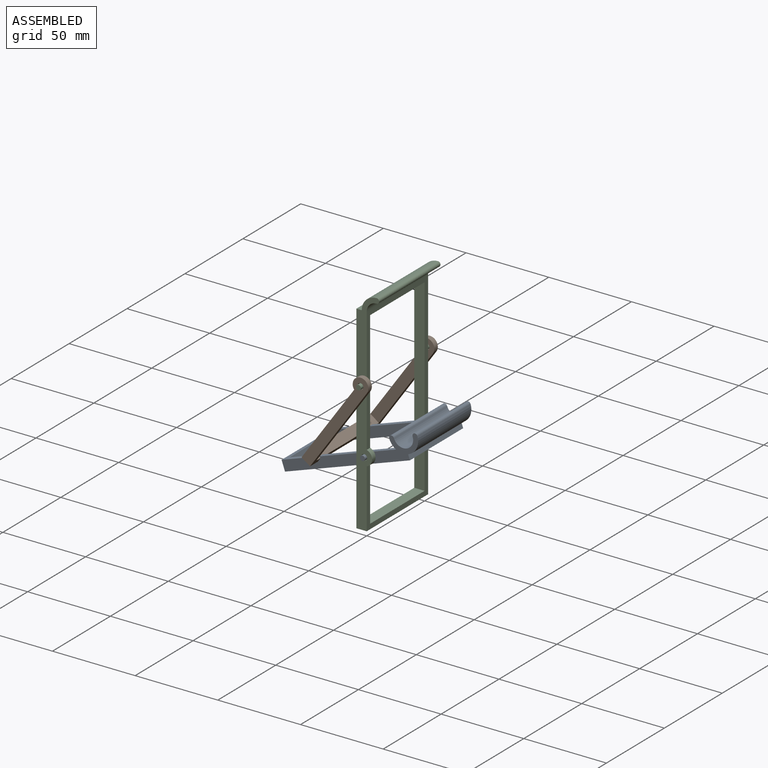
[diagram: assembled view]
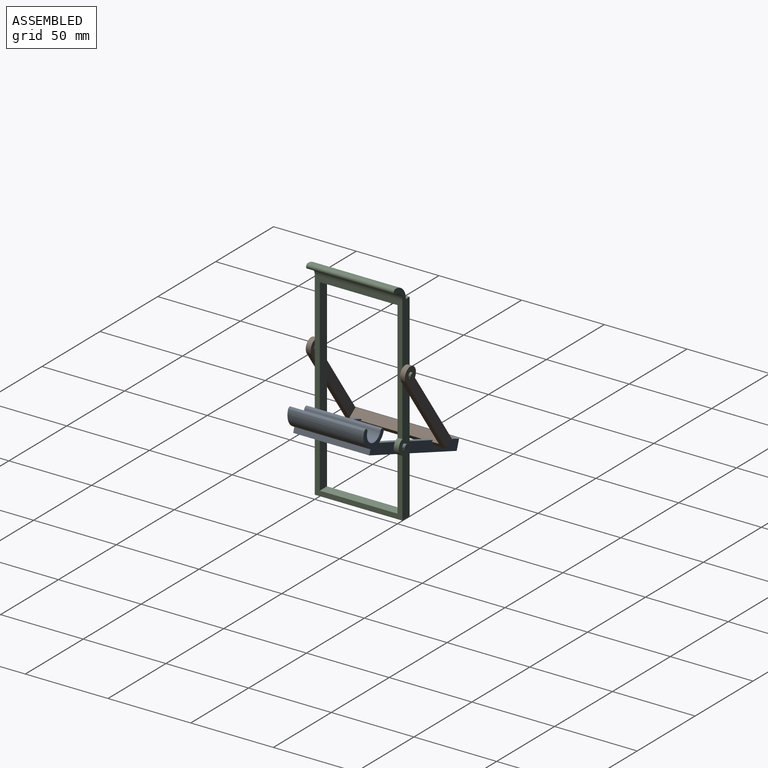
[diagram: assembled view, second angle]
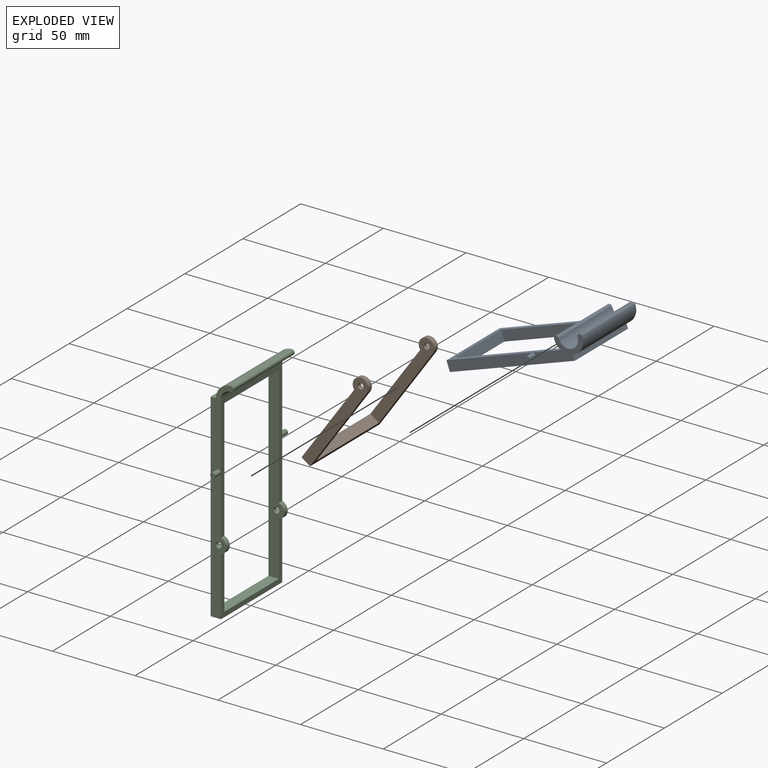
[diagram: exploded view]
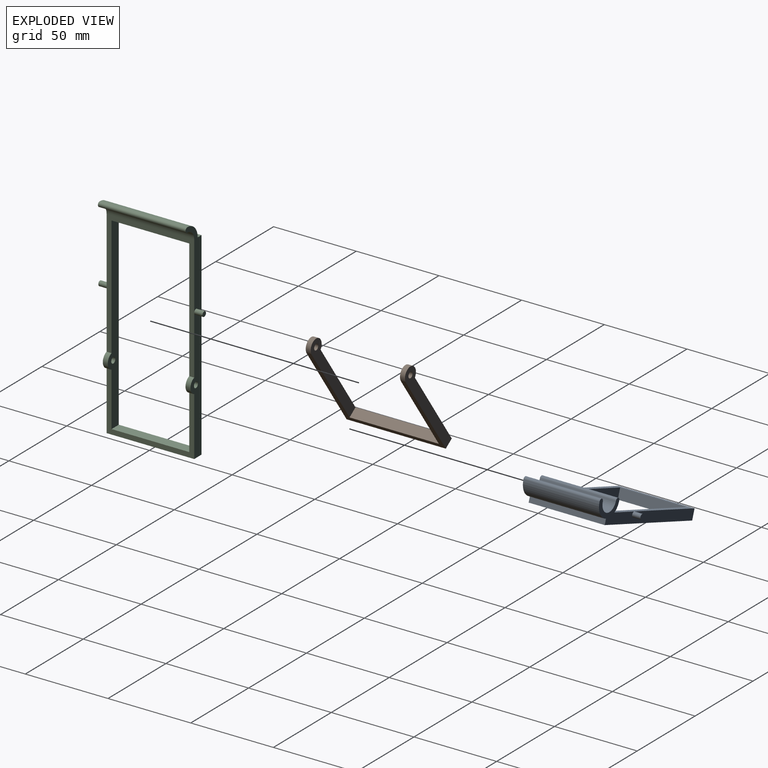
[diagram: exploded view, second angle]
ASSEMBLY  parts=3 mates=2
PART A: 20 faces, bbox 89x56x13.8 mm
  f0: plane 73.29x46mm, normal (0,0,-1), area 559.8mm2, adj f1,f8,f9,f10,f16,f18,f19
  f1: cylinder r=9mm len=46mm, axis (0,1,0), area 288.9mm2, adj f0,f3,f9,f10,f15,f16,f18
  f2: plane 80x46mm, normal (0,0,1), area 720mm2, adj f7,f8,f9,f10,f16,f17,f18,f19
  f3: cylinder r=1.5mm len=46mm, axis (0,1,0), area 216.8mm2, adj f1,f4,f9,f10
  f4: cylinder r=6mm len=46mm, axis (0,1,0), area 867.1mm2, adj f3,f5,f9,f10
  f5: cylinder r=1.5mm len=46mm, axis (0,1,0), area 216.8mm2, adj f4,f6,f9,f10
  f6: cylinder r=9mm len=46mm, axis (0,1,0), area 650.3mm2, adj f5,f7,f9,f10
  f7: plane 46x3.25mm, normal (1,0,0), area 149.5mm2, adj f2,f6,f9,f10
  f8: plane 46x6.25mm, normal (-1,0,0), area 287.5mm2, adj f0,f2,f9,f10
  f9: plane 89x13.75mm, normal (0,-1,0), area 556.7mm2, adj f0,f1,f2,f3,f4,f5,f6,f7
  f10: plane 89x13.75mm, normal (0,1,0), area 556.7mm2, adj f0,f1,f2,f3,f4,f5,f6,f7
  f11: plane 3x3mm, normal (0,1,0), area 7.1mm2, adj f12
  f12: cylinder r=1.5mm len=5mm, axis (0,-1,0), area 47.1mm2, adj f10,f11
  f13: cylinder r=1.5mm len=5mm, axis (0,-1,0), area 47.1mm2, adj f9,f14
  f14: plane 3x3mm, normal (0,-1,0), area 7.1mm2, adj f13
  f15: plane 40x3.92mm, normal (0,0,1), area 156.9mm2, adj f1,f16,f17,f18
  f16: plane 74x6.5mm, normal (0,1,0), area 463.5mm2, adj f0,f1,f2,f15,f17,f19
  f17: plane 40x6.5mm, normal (-1,0,0), area 260mm2, adj f2,f15,f16,f18
  f18: plane 74x6.5mm, normal (0,-1,0), area 463.5mm2, adj f0,f1,f2,f15,f17,f19
  f19: plane 40x6.25mm, normal (1,0,0), area 250mm2, adj f0,f2,f16,f18
PART B: 12 faces, bbox 64.8x60x9.5 mm
  f0: cylinder r=4.75mm len=9.5mm, axis (0,1,0), area 62.6mm2, adj f1,f2,f8,f10
  f1: plane 60x60mm, normal (0,0,-1), area 522mm2, adj f0,f4,f5,f7,f8,f9,f10,f11
  f2: plane 60x55.49mm, normal (0,0,1), area 495mm2, adj f0,f4,f5,f7,f8,f9,f10,f11
  f3: cylinder r=1.75mm len=3.5mm, axis (0,1,0), area 33mm2, adj f8,f10
  f4: cylinder r=4.75mm len=9.5mm, axis (0,1,0), area 62.6mm2, adj f1,f2,f7,f11
  f5: plane 60x6.25mm, normal (1,0,0), area 375mm2, adj f1,f2,f7,f8
  f6: cylinder r=1.75mm len=3.5mm, axis (0,1,0), area 33mm2, adj f7,f11
  f7: plane 64.75x9.5mm, normal (0,-1,0), area 411.5mm2, adj f1,f2,f4,f5,f6
  f8: plane 64.75x9.5mm, normal (0,1,0), area 411.5mm2, adj f0,f1,f2,f3,f5
  f9: plane 54x6.25mm, normal (-1,0,0), area 337.5mm2, adj f1,f2,f10,f11
  f10: plane 61.75x9.5mm, normal (0,-1,0), area 392.8mm2, adj f0,f1,f2,f3,f9
  f11: plane 61.75x9.5mm, normal (0,1,0), area 392.8mm2, adj f1,f2,f4,f6,f9
PART C: 22 faces, bbox 129x63x13.8 mm
  f0: plane 120x53mm, normal (0,0,1), area 1002mm2, adj f5,f6,f12,f13,f18,f19,f20,f21
  f1: plane 75.49x53mm, normal (0,0,-1), area 594mm2, adj f2,f9,f10,f12,f13,f18,f20,f21
  f2: cylinder r=4.75mm len=9.01mm, axis (0,1,0), area 35.6mm2, adj f1,f3,f13,f20
  f3: plane 53x35.49mm, normal (0,0,-1), area 354mm2, adj f2,f5,f10,f12,f13,f19,f20,f21
  f4: cylinder r=1.75mm len=3.5mm, axis (0,1,0), area 33mm2, adj f13,f20
  f5: plane 53x6.25mm, normal (1,0,0), area 331.2mm2, adj f0,f3,f12,f13
  f6: plane 53x3.25mm, normal (-1,0,0), area 172.2mm2, adj f0,f7,f12,f13
  f7: cylinder r=9mm len=53mm, axis (0,1,0), area 749.3mm2, adj f6,f8,f12,f13
  f8: cylinder r=1.5mm len=53mm, axis (0,1,0), area 249.8mm2, adj f7,f9,f12,f13
  f9: cylinder r=6mm len=53mm, axis (0,1,0), area 499.5mm2, adj f1,f8,f12,f13
  f10: cylinder r=4.75mm len=9.01mm, axis (0,1,0), area 35.6mm2, adj f1,f3,f12,f21
  f11: cylinder r=1.75mm len=3.5mm, axis (0,1,0), area 33mm2, adj f12,f21
  f12: plane 129x13.75mm, normal (0,-1,0), area 793.6mm2, adj f0,f1,f3,f5,f6,f7,f8,f9
  f13: plane 129x13.75mm, normal (0,1,0), area 793.6mm2, adj f0,f1,f2,f3,f4,f5,f6,f7
  f14: plane 3x3mm, normal (0,1,0), area 7.1mm2, adj f15
  f15: cylinder r=1.5mm len=5mm, axis (0,-1,0), area 47.1mm2, adj f13,f14
  f16: cylinder r=1.5mm len=5mm, axis (0,-1,0), area 47.1mm2, adj f12,f17
  f17: plane 3x3mm, normal (0,-1,0), area 7.1mm2, adj f16
  f18: plane 47x6.25mm, normal (1,0,0), area 293.7mm2, adj f0,f1,f20,f21
  f19: plane 47x6.25mm, normal (-1,0,0), area 293.7mm2, adj f0,f3,f20,f21
  f20: plane 114x9.5mm, normal (0,-1,0), area 724.3mm2, adj f0,f1,f2,f3,f4,f18,f19
  f21: plane 114x9.5mm, normal (0,1,0), area 724.3mm2, adj f0,f1,f3,f10,f11,f18,f19
PLACE A rot(axis=(0.99,0,0.17),180deg) t=(69.81,3.5,45.54)mm
PLACE B rot(axis=(0.46,0,-0.89),180deg) t=(-117.52,-3.2,-100.67)mm
PLACE C rot(axis=(0.71,0,-0.71),180deg) t=(-3,0,102.25)mm
MATE cylindrical A.f12 <-> C.f2  axis (0,1,0) through (-1.5,54.5,22.25)mm
MATE cylindrical B.f0 <-> C.f15  axis (0,1,0) through (-1.5,56.8,62.25)mm
